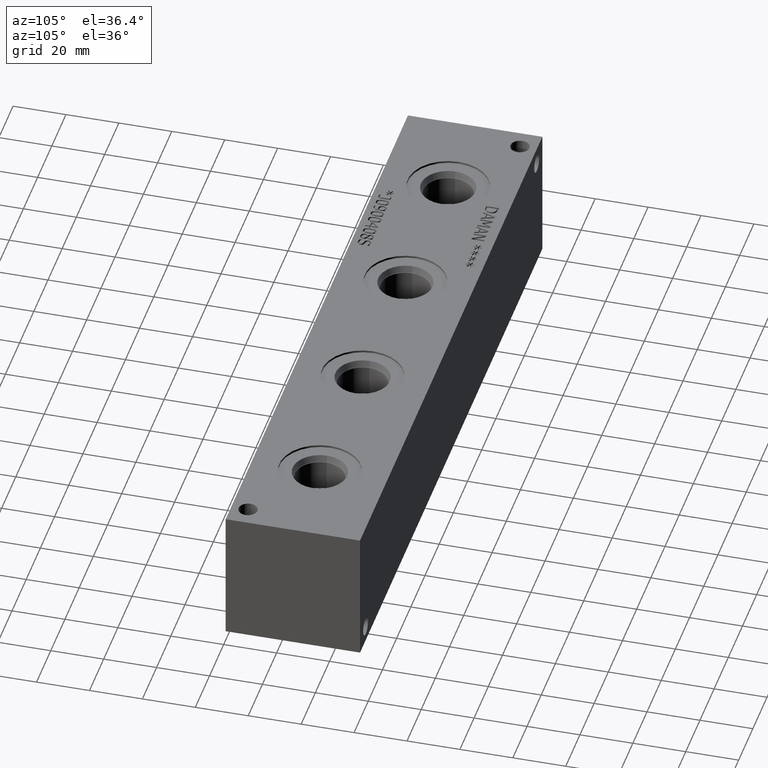
[diagram: clean part render]
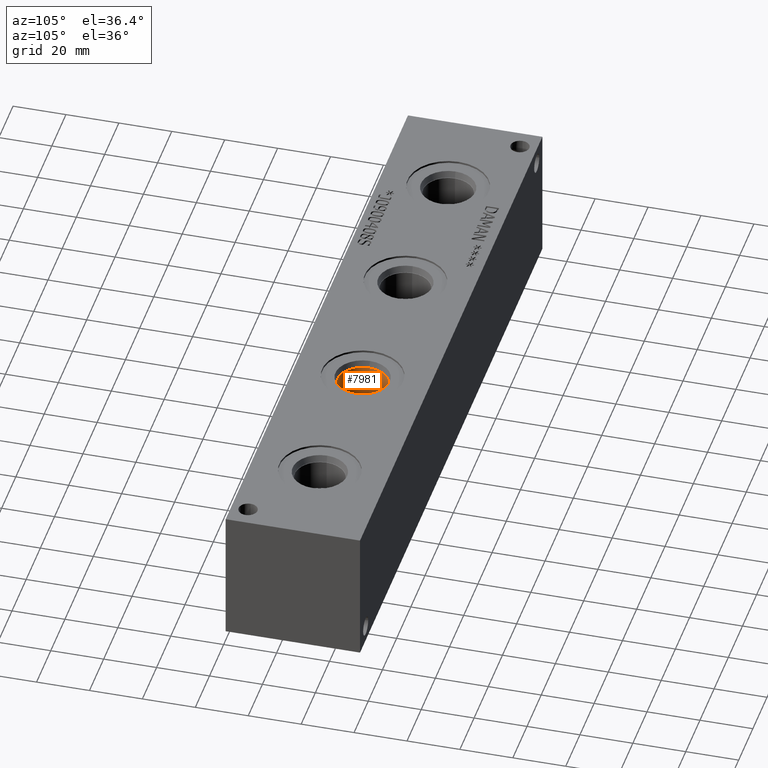
[diagram: same view with one face highlighted and labeled with its STEP entity id]
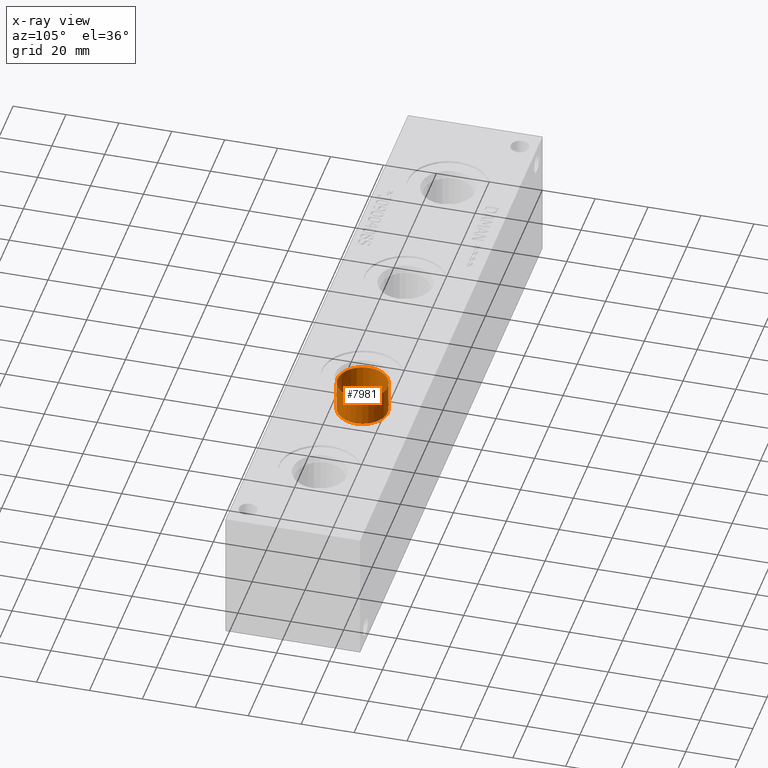
[diagram: x-ray of the same camera — body ghosted, the highlighted face saturated]
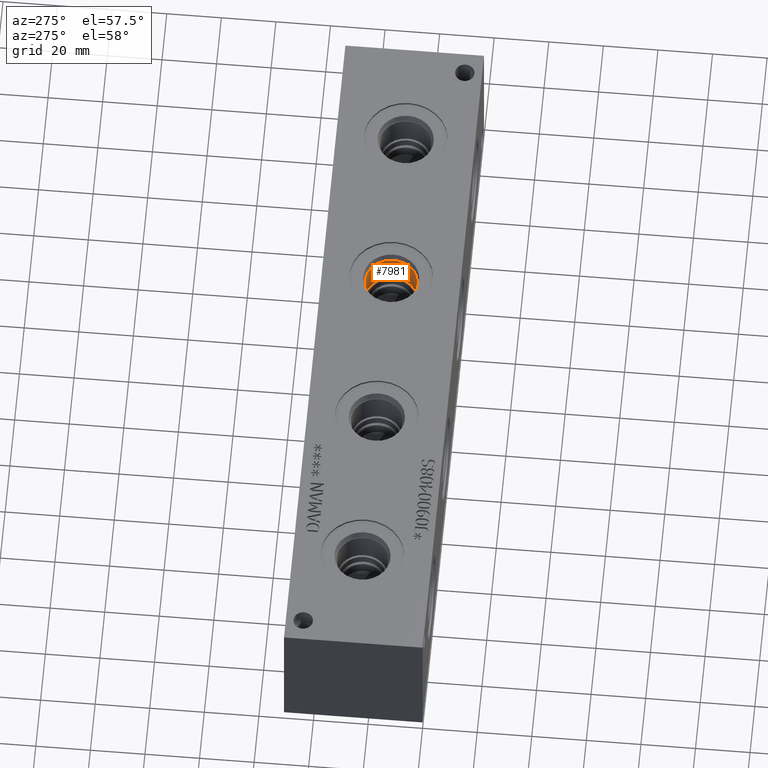
[diagram: same view with one face highlighted and labeled with its STEP entity id]
A machine part, auxiliary view. The second image highlights one B-rep face of the part: STEP entity #7981.
The next image is the same camera in x-ray: the body ghosted, the highlighted face saturated — about 0% of this face is hidden behind the body in this view.
A second angle (auxiliary view) of the same face is appended — the face is thin or edge-on in the first view.
In plain terms, the highlighted cylindrical surface (bore or boss wall) has radius 9.525 mm, axis along (0, 0, 1).
Its self-contained STEP definition (entity closure, byte-faithful):
#97=CYLINDRICAL_SURFACE('',#8432,9.525);
#231=CIRCLE('',#8421,9.525);
#235=CIRCLE('',#8430,9.525);
#236=CIRCLE('',#8431,9.525);
#936=FACE_OUTER_BOUND('',#1400,.T.);
#1400=EDGE_LOOP('',(#6990,#6991,#6992,#6993,#6994));
#2115=LINE('',#13932,#2808);
#2808=VECTOR('',#9981,9.525);
#3785=VERTEX_POINT('',#13916);
#3786=VERTEX_POINT('',#13927);
#3787=VERTEX_POINT('',#13928);
#4870=EDGE_CURVE('',#3785,#3785,#231,.T.);
#4874=EDGE_CURVE('',#3786,#3787,#235,.T.);
#4875=EDGE_CURVE('',#3787,#3786,#236,.T.);
#4876=EDGE_CURVE('',#3785,#3787,#2115,.T.);
#6990=ORIENTED_EDGE('',*,*,#4870,.T.);
#6991=ORIENTED_EDGE('',*,*,#4876,.T.);
#6992=ORIENTED_EDGE('',*,*,#4874,.F.);
#6993=ORIENTED_EDGE('',*,*,#4875,.F.);
#6994=ORIENTED_EDGE('',*,*,#4876,.F.);
#7981=ADVANCED_FACE('',(#936),#97,.F.);
#8421=AXIS2_PLACEMENT_3D('',#13918,#9957,#9958);
#8430=AXIS2_PLACEMENT_3D('',#13929,#9975,#9976);
#8431=AXIS2_PLACEMENT_3D('',#13930,#9977,#9978);
#8432=AXIS2_PLACEMENT_3D('',#13931,#9979,#9980);
#9957=DIRECTION('center_axis',(0.,0.,1.));
#9958=DIRECTION('ref_axis',(1.,0.,0.));
#9975=DIRECTION('center_axis',(0.,0.,1.));
#9976=DIRECTION('ref_axis',(1.,0.,0.));
#9977=DIRECTION('center_axis',(0.,0.,1.));
#9978=DIRECTION('ref_axis',(1.,0.,0.));
#9979=DIRECTION('center_axis',(0.,0.,1.));
#9980=DIRECTION('ref_axis',(1.,0.,0.));
#9981=DIRECTION('',(0.,0.,-1.));
#13916=CARTESIAN_POINT('',(149.225,25.4,47.3964));
#13918=CARTESIAN_POINT('Origin',(158.75,25.4,47.3964));
#13927=CARTESIAN_POINT('',(168.275,25.4,35.7378));
#13928=CARTESIAN_POINT('',(149.225,25.4,35.7378));
#13929=CARTESIAN_POINT('Origin',(158.75,25.4,35.7378));
#13930=CARTESIAN_POINT('Origin',(158.75,25.4,35.7378));
#13931=CARTESIAN_POINT('Origin',(158.75,25.4,43.2689));
#13932=CARTESIAN_POINT('',(149.225,25.4,43.2689));